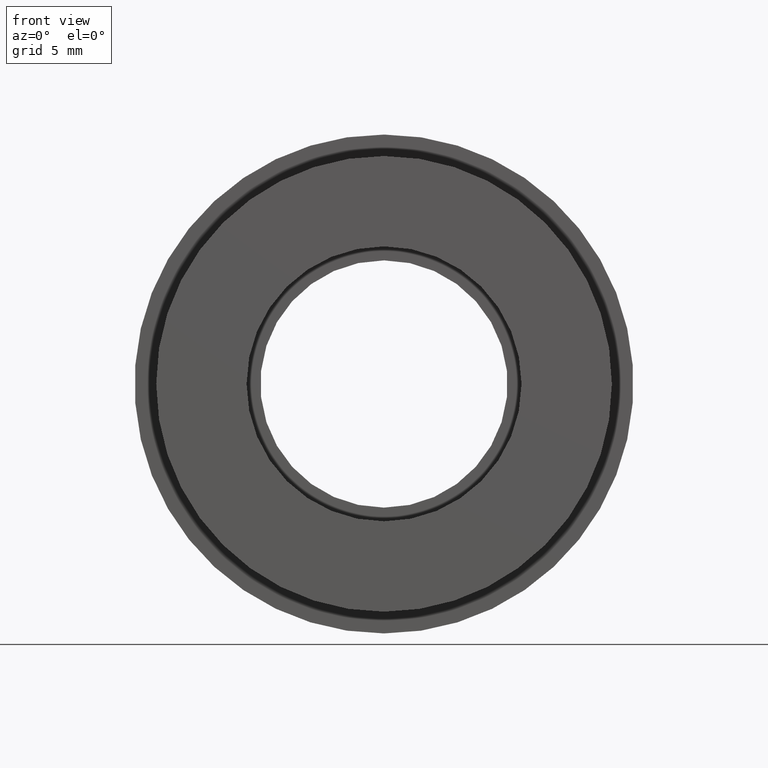
[diagram: clean part render]
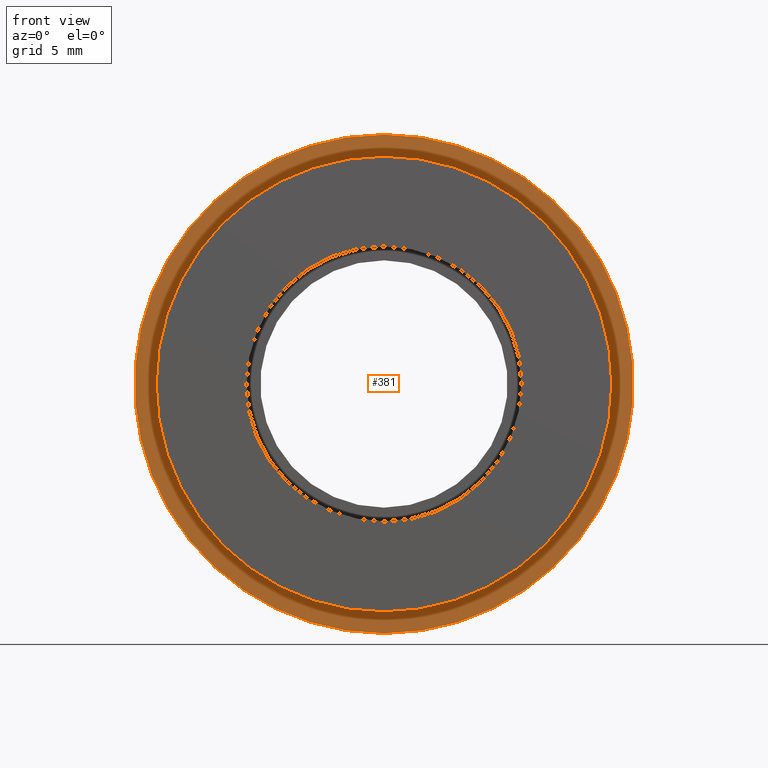
[diagram: same view with one face highlighted and labeled with its STEP entity id]
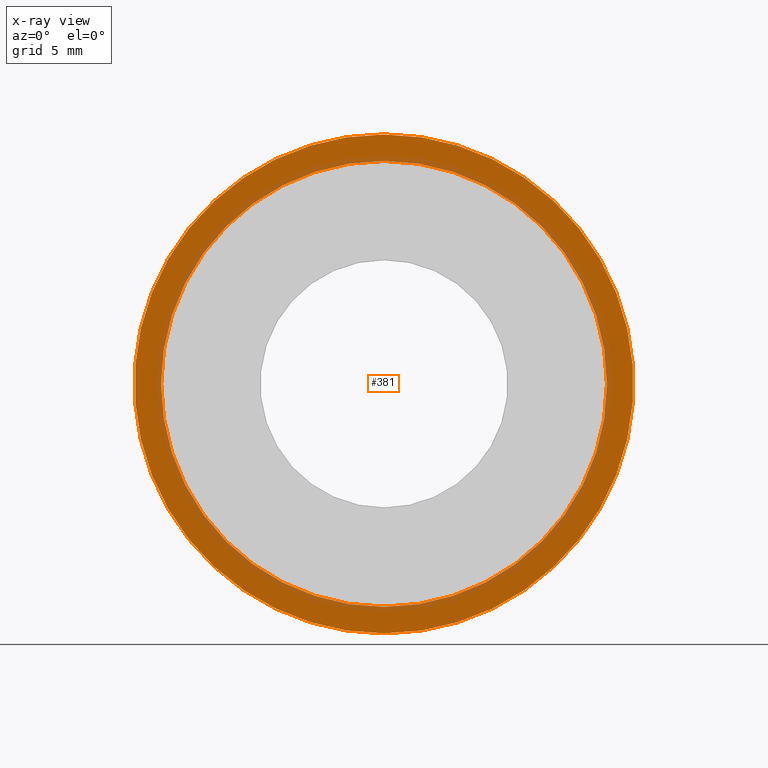
[diagram: x-ray of the same camera — body ghosted, the highlighted face saturated]
A machine part, front view. The second image highlights one B-rep face of the part: STEP entity #381.
The next image is the same camera in x-ray: the body ghosted, the highlighted face saturated — about 18% of this face is hidden behind the body in this view.
In plain terms, the highlighted planar face has unit normal (-0, 1, 0).
Its self-contained STEP definition (entity closure, byte-faithful):
#21 = CIRCLE ( 'NONE', #583, 11.35000000000000000 ) ;
#22 = CARTESIAN_POINT ( 'NONE',  ( 0.0000000000000000000, 5.000000000000000900, 0.0000000000000000000 ) ) ;
#70 = DIRECTION ( 'NONE',  ( 0.0000000000000000000, 0.0000000000000000000, 1.000000000000000000 ) ) ;
#108 = AXIS2_PLACEMENT_3D ( 'NONE', #363, #369, #380 ) ;
#109 = DIRECTION ( 'NONE',  ( -0.0000000000000000000, 1.000000000000000000, 0.0000000000000000000 ) ) ;
#120 = AXIS2_PLACEMENT_3D ( 'NONE', #22, #624, #166 ) ;
#124 = AXIS2_PLACEMENT_3D ( 'NONE', #150, #152, #153 ) ;
#147 = EDGE_LOOP ( 'NONE', ( #351, #525 ) ) ;
#150 = CARTESIAN_POINT ( 'NONE',  ( 0.0000000000000000000, 5.000000000000000900, 0.0000000000000000000 ) ) ;
#152 = DIRECTION ( 'NONE',  ( -0.0000000000000000000, 1.000000000000000000, -0.0000000000000000000 ) ) ;
#153 = DIRECTION ( 'NONE',  ( 0.0000000000000000000, 0.0000000000000000000, 1.000000000000000000 ) ) ;
#166 = DIRECTION ( 'NONE',  ( 0.0000000000000000000, 0.0000000000000000000, 1.000000000000000000 ) ) ;
#176 = AXIS2_PLACEMENT_3D ( 'NONE', #204, #109, #70 ) ;
#177 = VERTEX_POINT ( 'NONE', #620 ) ;
#189 = PLANE ( 'NONE',  #176 ) ;
#193 = CIRCLE ( 'NONE', #120, 12.70000000000000100 ) ;
#194 = CIRCLE ( 'NONE', #124, 12.70000000000000100 ) ;
#204 = CARTESIAN_POINT ( 'NONE',  ( 12.70000000000000100, 5.000000000000000900, 0.0000000000000000000 ) ) ;
#229 = DIRECTION ( 'NONE',  ( 0.0000000000000000000, 0.0000000000000000000, 1.000000000000000000 ) ) ;
#233 = CARTESIAN_POINT ( 'NONE',  ( 0.0000000000000000000, 5.000000000000000900, 0.0000000000000000000 ) ) ;
#286 = VERTEX_POINT ( 'NONE', #515 ) ;
#334 = DIRECTION ( 'NONE',  ( -0.0000000000000000000, 1.000000000000000000, -0.0000000000000000000 ) ) ;
#351 = ORIENTED_EDGE ( 'NONE', *, *, #439, .F. ) ;
#361 = ORIENTED_EDGE ( 'NONE', *, *, #459, .T. ) ;
#363 = CARTESIAN_POINT ( 'NONE',  ( 0.0000000000000000000, 5.000000000000000900, 0.0000000000000000000 ) ) ;
#369 = DIRECTION ( 'NONE',  ( -0.0000000000000000000, 1.000000000000000000, -0.0000000000000000000 ) ) ;
#380 = DIRECTION ( 'NONE',  ( 0.0000000000000000000, 0.0000000000000000000, 1.000000000000000000 ) ) ;
#381 = ADVANCED_FACE ( 'NONE', ( #420, #566 ), #189, .F. ) ;
#399 = VERTEX_POINT ( 'NONE', #404 ) ;
#404 = CARTESIAN_POINT ( 'NONE',  ( 1.555301434917138600E-015, 5.000000000000000900, -12.70000000000000100 ) ) ;
#420 = FACE_OUTER_BOUND ( 'NONE', #147, .T. ) ;
#439 = EDGE_CURVE ( 'NONE', #177, #399, #193, .T. ) ;
#454 = EDGE_CURVE ( 'NONE', #399, #177, #194, .T. ) ;
#459 = EDGE_CURVE ( 'NONE', #286, #546, #554, .T. ) ;
#462 = EDGE_LOOP ( 'NONE', ( #512, #361 ) ) ;
#512 = ORIENTED_EDGE ( 'NONE', *, *, #574, .T. ) ;
#515 = CARTESIAN_POINT ( 'NONE',  ( 1.389974117032245900E-015, 5.000000000000000900, -11.35000000000000000 ) ) ;
#525 = ORIENTED_EDGE ( 'NONE', *, *, #454, .F. ) ;
#546 = VERTEX_POINT ( 'NONE', #590 ) ;
#554 = CIRCLE ( 'NONE', #108, 11.35000000000000000 ) ;
#566 = FACE_BOUND ( 'NONE', #462, .T. ) ;
#574 = EDGE_CURVE ( 'NONE', #546, #286, #21, .T. ) ;
#583 = AXIS2_PLACEMENT_3D ( 'NONE', #233, #334, #229 ) ;
#590 = CARTESIAN_POINT ( 'NONE',  ( 0.0000000000000000000, 5.000000000000000900, 11.35000000000000000 ) ) ;
#620 = CARTESIAN_POINT ( 'NONE',  ( 0.0000000000000000000, 5.000000000000000900, 12.70000000000000100 ) ) ;
#624 = DIRECTION ( 'NONE',  ( -0.0000000000000000000, 1.000000000000000000, -0.0000000000000000000 ) ) ;